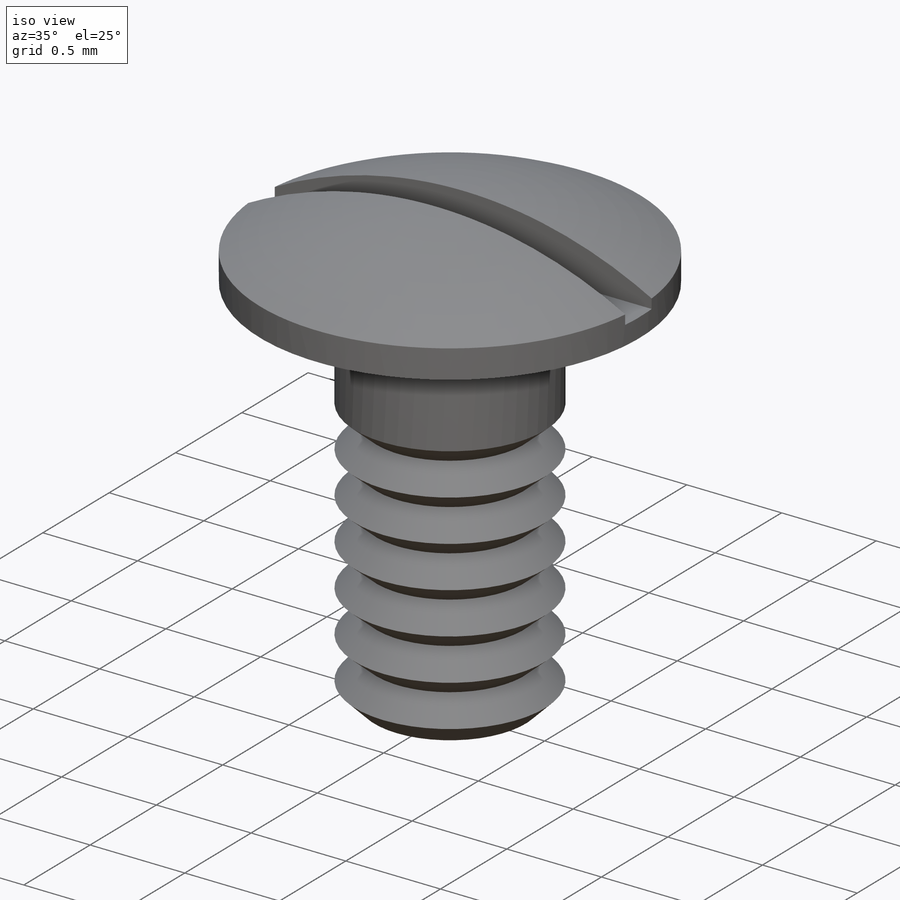
[diagram: iso view]
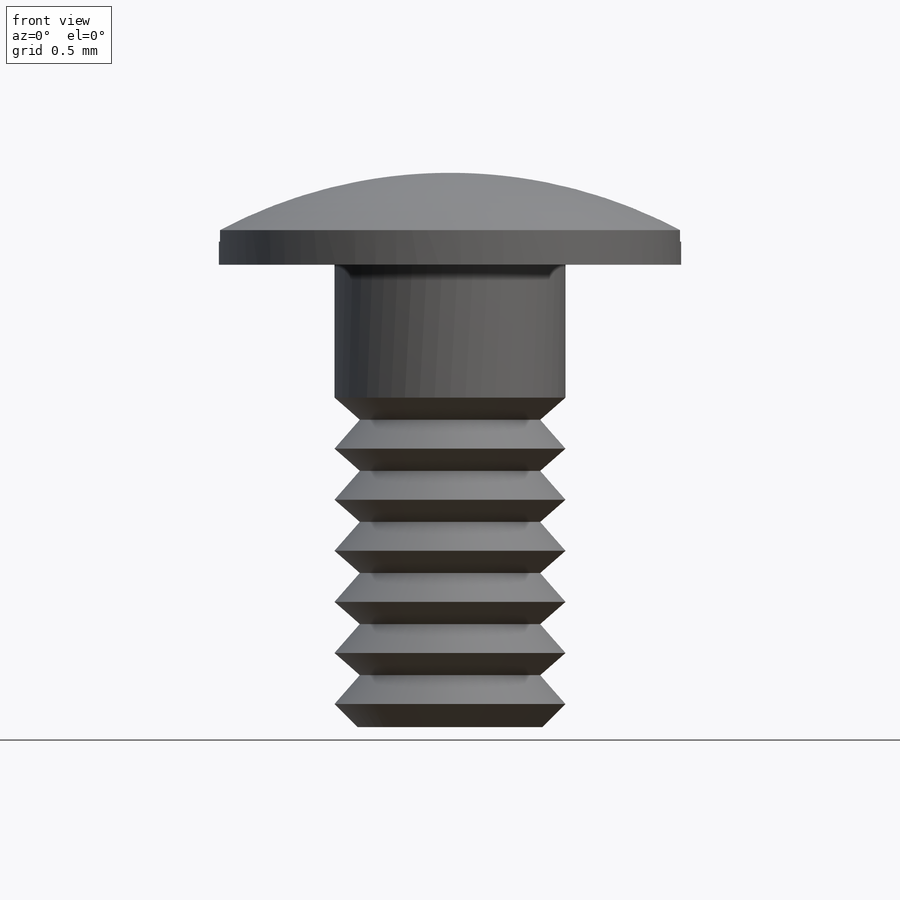
[diagram: front view]
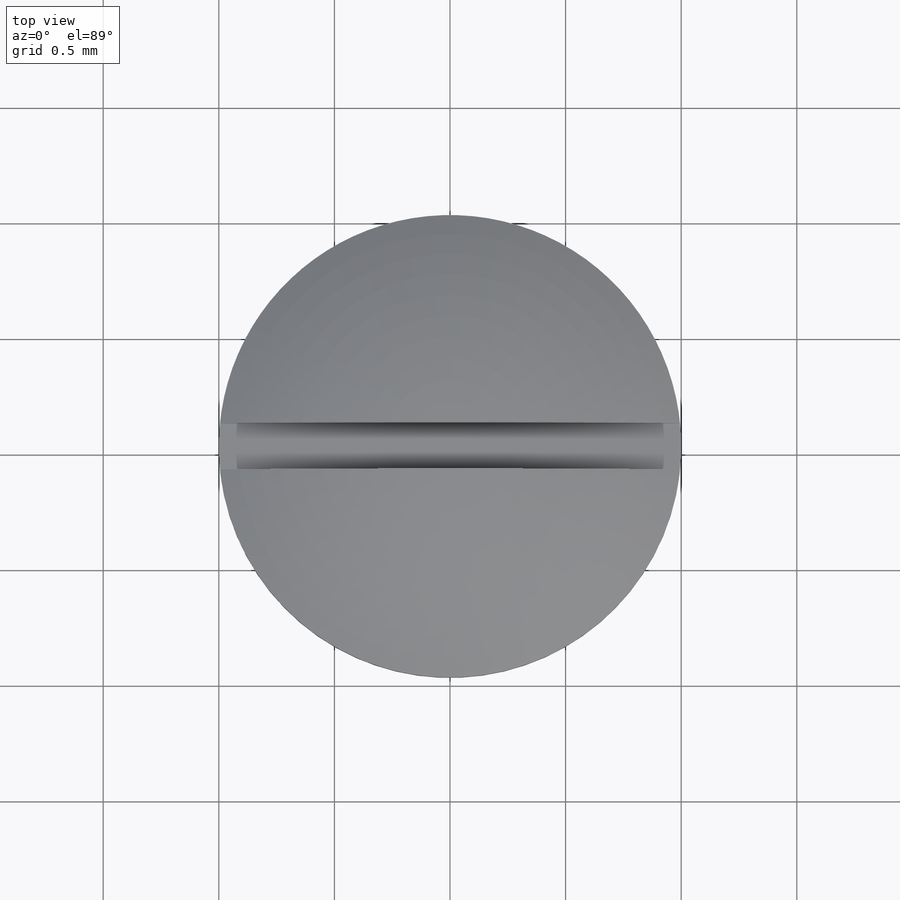
[diagram: top view]
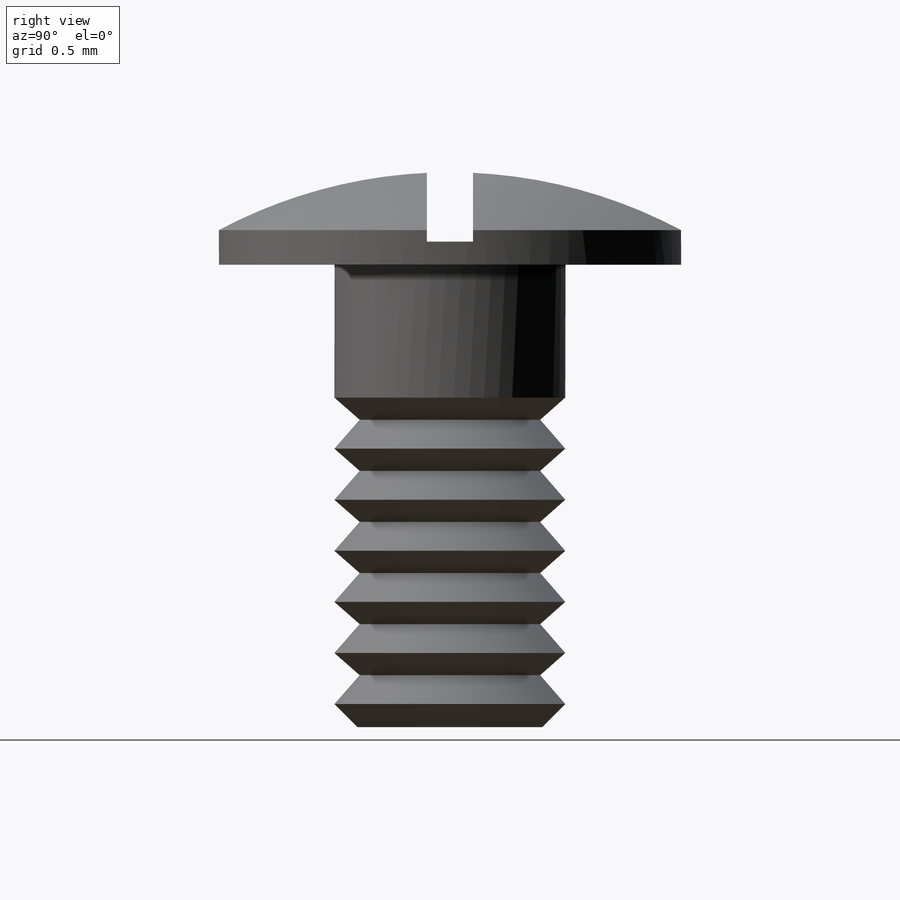
[diagram: right view]
SOLIDWORKS PART (.sldprt)
format: sldprt  version: not decoded by parser v0  size: 257,024 bytes
history: native  units: mm
features: plane x3, sketch x3, material x1, revolve x1, cut_extrude x1, chamfer x1, cut_revolve x1 (+8 scaffold rows collapsed)
feature tree (19):
  scaffold x8  (default folders/planes/origin — collapsed)
  material  "Matériau <non spécifié>"
  plane  "Plan de face"
  plane  "Plan de dessus"
  plane  "Plan de droite"
  sketch  "Esquisse1"  dims[D1=1.0mm D2=2.0mm D3=2.0mm D4=0.15mm D5=0.4mm]
  revolve  "Révolution1"  Angle=360deg
  sketch  "Esquisse2"  dims[c1.D1=~0.59743mm c1.D2=~0.199264mm c2.D1=0.2mm c2.D2=2.1mm]
  cut_extrude  "Enlèv. mat.-Extru.1"  Depth=3mm
  chamfer  "Chanfrein1"  Distance=0.1mm Angle=45deg
  sketch  "Esquisse3"  dims[D1=~0.322305mm]
  cut_revolve  "Enlèvement de matière-Révolution1"  Angle=360deg
decode coverage: 7 of 7 modeling features carry decoded parameters
note: ~ marks probable driven/reference dimensions
note: suppression state not decoded; provenance and decode notes live in map.json
